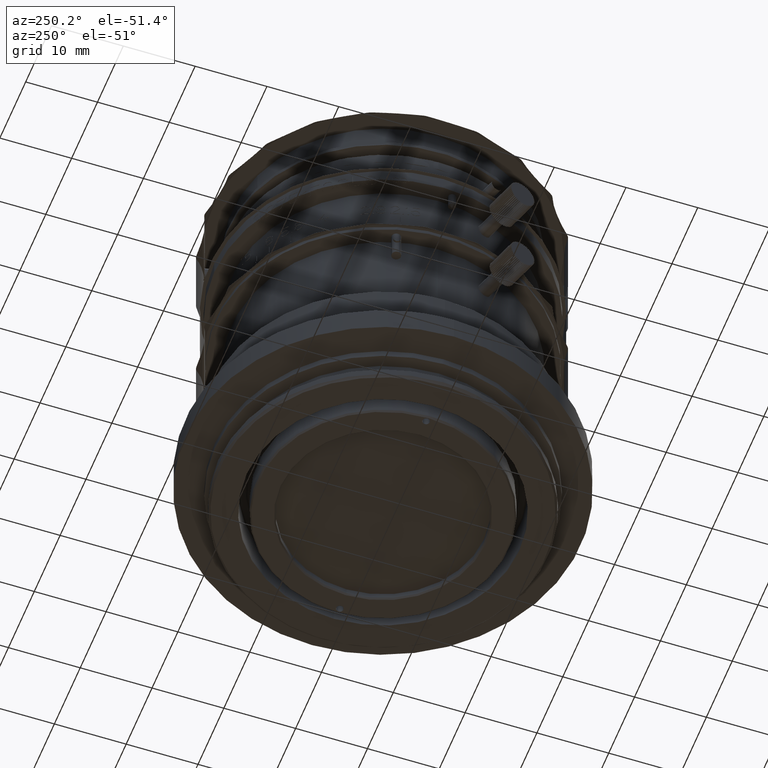
[diagram: clean part render]
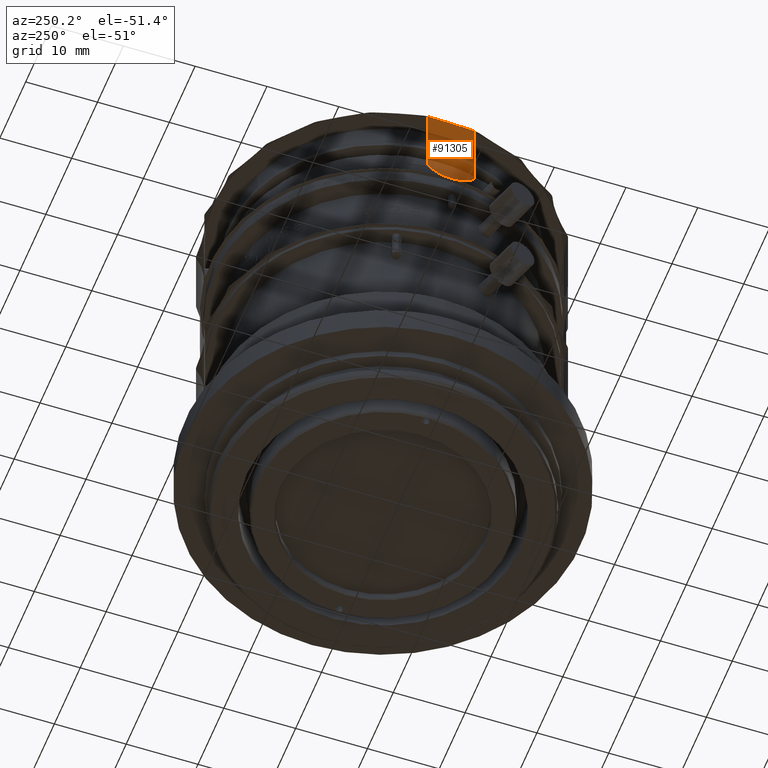
[diagram: same view with one face highlighted and labeled with its STEP entity id]
A machine part, auxiliary view. The second image highlights one B-rep face of the part: STEP entity #91305.
In plain terms, the highlighted cylindrical surface (partial cylindrical patch) has radius 12 mm, axis along (0, 0, -1).
Its self-contained STEP definition (entity closure, byte-faithful):
#264 = CARTESIAN_POINT ( 'NONE',  ( -0.08341363756947017816, 146.7519510694893086, 7.749779129827919277 ) ) ;
#3257 = CARTESIAN_POINT ( 'NONE',  ( 0.04486933428729363710, 151.9462077554333348, 11.60462118186179481 ) ) ;
#4372 = CARTESIAN_POINT ( 'NONE',  ( -0.1293348334404690048, 152.7515255101253615, 0.6932191699176142308 ) ) ;
#5421 = CARTESIAN_POINT ( 'NONE',  ( 0.2799822956691012110, 149.4868290321490463, 0.2400034127275050000 ) ) ;
#5660 = B_SPLINE_CURVE_WITH_KNOTS ( 'NONE', 3,
 ( #19782, #99682, #9696, #76208, #74635, #3257, #10200, #100192, #50658, #27221, #68197, #83171, #34695, #90657, #101222, #34159, #100709, #59678, #52223, #66646 ),
 .UNSPECIFIED., .F., .F.,
 ( 4, 2, 1, 2, 2, 2, 2, 1, 2, 2, 4 ),
 ( 0.000000000000000000, 0.1250000000000225653, 0.1875000000000394962, 0.2187500000000420497, 0.2500000000000445755, 0.5000000000000418554, 0.6250000000000339728, 0.6875000000000301981, 0.7187500000000283107, 0.7500000000000263123, 1.000000000000000000 ),
 .UNSPECIFIED. ) ;
#6239 = DIRECTION ( 'NONE',  ( 0.000000000000000000, 0.000000000000000000, -1.000000000000000000 ) ) ;
#9696 = CARTESIAN_POINT ( 'NONE',  ( -0.1381072602918799463, 152.7483122498138073, 11.37374039879113496 ) ) ;
#10200 = CARTESIAN_POINT ( 'NONE',  ( 0.07052061571598772227, 151.8112590246460059, 11.63618032622067133 ) ) ;
#13414 = CARTESIAN_POINT ( 'NONE',  ( 0.1104003414820279028, 147.6898609592202547, 0.5822697562756754541 ) ) ;
#15273 = FACE_OUTER_BOUND ( 'NONE', #101640, .T. ) ;
#15433 = CARTESIAN_POINT ( 'NONE',  ( -0.08341363757904800280, 146.7519510694791904, 0.9106626104832359347 ) ) ;
#16344 = CARTESIAN_POINT ( 'NONE',  ( -11.73122182930000079, 149.6378762813999970, 6.040000008004360765 ) ) ;
#16459 = ORIENTED_EDGE ( 'NONE', *, *, #74150, .T. ) ;
#18021 = CARTESIAN_POINT ( 'NONE',  ( -0.2948333563012314751, 153.2722976513815070, 11.16933738950019972 ) ) ;
#18797 = VERTEX_POINT ( 'NONE', #15433 ) ;
#19782 = CARTESIAN_POINT ( 'NONE',  ( -0.2948333563012314751, 153.2722976513815070, 11.16933738950019972 ) ) ;
#20369 = CARTESIAN_POINT ( 'NONE',  ( 0.001059231606836616869, 152.2177856184492839, 0.5278993765640169755 ) ) ;
#21943 = CARTESIAN_POINT ( 'NONE',  ( 0.2357462244428554510, 150.5696101135662843, 0.2545560429105903633 ) ) ;
#22110 = EDGE_CURVE ( 'NONE', #30577, #82948, #5660, .T. ) ;
#22456 = CARTESIAN_POINT ( 'NONE',  ( 0.1694931491668088819, 151.1894134800100176, 0.3255295502298661825 ) ) ;
#27221 = CARTESIAN_POINT ( 'NONE',  ( 0.2449677183438368488, 150.5667055023072862, 11.83999658726360060 ) ) ;
#28333 = CARTESIAN_POINT ( 'NONE',  ( 0.1865251898344307546, 148.2335888197139013, 0.4438196738003679642 ) ) ;
#30577 = VERTEX_POINT ( 'NONE', #18021 ) ;
#34159 = CARTESIAN_POINT ( 'NONE',  ( 0.2159315974434126706, 148.5107248617498215, 11.69350486187278726 ) ) ;
#34695 = CARTESIAN_POINT ( 'NONE',  ( 0.2560765558863355995, 149.0688503523772397, 11.78176814947447149 ) ) ;
#36318 = CARTESIAN_POINT ( 'NONE',  ( 0.1392579604353248457, 151.3976077627475547, 0.3610169437846499907 ) ) ;
#38078 = CARTESIAN_POINT ( 'NONE',  ( -0.2948333563012314751, 153.2722976513815070, 11.16933738950019972 ) ) ;
#40754 = CARTESIAN_POINT ( 'NONE',  ( -0.08341363757691930281, 146.7519510694880012, 11.16933738950172028 ) ) ;
#41641 = AXIS2_PLACEMENT_3D ( 'NONE', #16344, #6239, #80250 ) ;
#44379 = ORIENTED_EDGE ( 'NONE', *, *, #80453, .T. ) ;
#44483 = CARTESIAN_POINT ( 'NONE',  ( -0.2948333562867531121, 153.2722976513592243, 7.749779129827883750 ) ) ;
#44834 = CARTESIAN_POINT ( 'NONE',  ( 0.2613940337016892879, 148.9327535715181625, 0.2982378232814703600 ) ) ;
#45868 = CARTESIAN_POINT ( 'NONE',  ( 0.1941620736476334375, 148.2998855163715746, 0.4292614062972761046 ) ) ;
#46681 = CYLINDRICAL_SURFACE ( 'NONE', #41641, 12.00000000000360778 ) ;
#50658 = CARTESIAN_POINT ( 'NONE',  ( 0.1905248725910759777, 151.1184129576630255, 11.78176217670795367 ) ) ;
#52223 = CARTESIAN_POINT ( 'NONE',  ( 0.04800105306230628005, 147.2823505073309889, 11.38678083022742094 ) ) ;
#52803 = CARTESIAN_POINT ( 'NONE',  ( -0.2948333563018619707, 153.2722976513834965, 0.9106626104836419433 ) ) ;
#53828 = B_SPLINE_CURVE_WITH_KNOTS ( 'NONE', 3,
 ( #78572, #76997, #44483, #38078 ),
 .UNSPECIFIED., .F., .F.,
 ( 4, 4 ),
 ( 0.000000000000000000, 1.000000000000000000 ),
 .UNSPECIFIED. ) ;
#54394 = CARTESIAN_POINT ( 'NONE',  ( -0.08341363757904800280, 146.7519510694791904, 0.9106626104832359347 ) ) ;
#59678 = CARTESIAN_POINT ( 'NONE',  ( 0.1435449573729087880, 147.8234163503936998, 11.55210062358469969 ) ) ;
#60469 = B_SPLINE_CURVE_WITH_KNOTS ( 'NONE', 3,
 ( #40754, #264, #80161, #87631 ),
 .UNSPECIFIED., .F., .F.,
 ( 4, 4 ),
 ( 0.000000000000000000, 1.000000000000000000 ),
 .UNSPECIFIED. ) ;
#60802 = CARTESIAN_POINT ( 'NONE',  ( 0.1178184380513686152, 151.5366100878211171, 0.3864951381209199011 ) ) ;
#62377 = CARTESIAN_POINT ( 'NONE',  ( 0.1696699188110230294, 148.0972618303190700, 0.4753788181830333470 ) ) ;
#62894 = CARTESIAN_POINT ( 'NONE',  ( 0.1940350658662665928, 150.9822575768963873, 0.2982318505239450190 ) ) ;
#66646 = CARTESIAN_POINT ( 'NONE',  ( -0.08341363757691930281, 146.7519510694880012, 11.16933738950172028 ) ) ;
#68197 = CARTESIAN_POINT ( 'NONE',  ( 0.2712286513270764088, 149.7567981500194776, 11.84000170643224514 ) ) ;
#73006 = EDGE_CURVE ( 'NONE', #82948, #18797, #60469, .T. ) ;
#74150 = EDGE_CURVE ( 'NONE', #18797, #82313, #79352, .T. ) ;
#74635 = CARTESIAN_POINT ( 'NONE',  ( 0.004669865350612542945, 152.1482201472387885, 11.55483976432833693 ) ) ;
#76208 = CARTESIAN_POINT ( 'NONE',  ( -0.04066763152777495144, 152.3489133301975187, 11.49773024380946396 ) ) ;
#76795 = CARTESIAN_POINT ( 'NONE',  ( 0.1426414778076700585, 147.8930695994235123, 0.5251602357459611570 ) ) ;
#76997 = CARTESIAN_POINT ( 'NONE',  ( -0.2948333562867531121, 153.2722976513592243, 4.330220870166166414 ) ) ;
#77854 = ORIENTED_EDGE ( 'NONE', *, *, #22110, .T. ) ;
#78572 = CARTESIAN_POINT ( 'NONE',  ( -0.2948333563018619707, 153.2722976513834965, 0.9106626104836419433 ) ) ;
#79256 = CARTESIAN_POINT ( 'NONE',  ( -0.2948333563018619707, 153.2722976513834965, 0.9106626104836419433 ) ) ;
#79352 = B_SPLINE_CURVE_WITH_KNOTS ( 'NONE', 3,
 ( #54394, #94367, #86390, #13414, #76795, #62377, #28333, #45868, #44834, #5421, #94897, #21943, #62894, #22456, #36318, #60802, #93322, #20369, #4372, #52803 ),
 .UNSPECIFIED., .F., .F.,
 ( 4, 2, 1, 2, 2, 2, 2, 1, 2, 2, 4 ),
 ( 0.000000000000000000, 0.1250000000000324463, 0.1875000000000486833, 0.2187500000000567879, 0.2500000000000648925, 0.5000000000000478506, 0.6250000000000328626, 0.6875000000000254241, 0.7187500000000216493, 0.7500000000000178746, 1.000000000000000000 ),
 .UNSPECIFIED. ) ;
#80161 = CARTESIAN_POINT ( 'NONE',  ( -0.08341363756988169620, 146.7519510694876601, 4.330220870166140656 ) ) ;
#80250 = DIRECTION ( 'NONE',  ( 0.9530323727508174247, 0.3028684474965113171, 0.000000000000000000 ) ) ;
#80453 = EDGE_CURVE ( 'NONE', #82313, #30577, #53828, .T. ) ;
#82313 = VERTEX_POINT ( 'NONE', #79256 ) ;
#82948 = VERTEX_POINT ( 'NONE', #84729 ) ;
#83171 = CARTESIAN_POINT ( 'NONE',  ( 0.2709683354999811167, 149.4833331441090536, 11.82544395708888274 ) ) ;
#84729 = CARTESIAN_POINT ( 'NONE',  ( -0.08341363757691930281, 146.7519510694880012, 11.16933738950172028 ) ) ;
#86390 = CARTESIAN_POINT ( 'NONE',  ( 0.03903889397286214313, 147.2849887299146587, 0.7062596012908232135 ) ) ;
#87631 = CARTESIAN_POINT ( 'NONE',  ( -0.08341363757904800280, 146.7519510694791904, 0.9106626104832359347 ) ) ;
#90657 = CARTESIAN_POINT ( 'NONE',  ( 0.2450059808267227024, 148.8605397279362421, 11.75447044976742106 ) ) ;
#91305 = ADVANCED_FACE ( 'NONE', ( #15273 ), #46681, .T. ) ;
#93322 = CARTESIAN_POINT ( 'NONE',  ( 0.1061194375505610660, 151.6081747277830232, 0.4005537121371599008 ) ) ;
#94367 = CARTESIAN_POINT ( 'NONE',  ( -0.01771012782153532153, 147.0171353077723779, 0.8019472365752106091 ) ) ;
#94876 = ORIENTED_EDGE ( 'NONE', *, *, #73006, .T. ) ;
#94897 = CARTESIAN_POINT ( 'NONE',  ( 0.2537213626644728715, 150.2967363850977165, 0.2399982935663343975 ) ) ;
#99682 = CARTESIAN_POINT ( 'NONE',  ( -0.2120889251136763021, 153.0119267800299667, 11.27805276347149643 ) ) ;
#100192 = CARTESIAN_POINT ( 'NONE',  ( 0.08243623242780034888, 151.7455963103796535, 11.65073859369395493 ) ) ;
#100709 = CARTESIAN_POINT ( 'NONE',  ( 0.2088932081891700931, 148.4385526690163033, 11.67944628783508065 ) ) ;
#101222 = CARTESIAN_POINT ( 'NONE',  ( 0.2283213598543900047, 148.6508240883944154, 11.71898305621060743 ) ) ;
#101640 = EDGE_LOOP ( 'NONE', ( #94876, #16459, #44379, #77854 ) ) ;